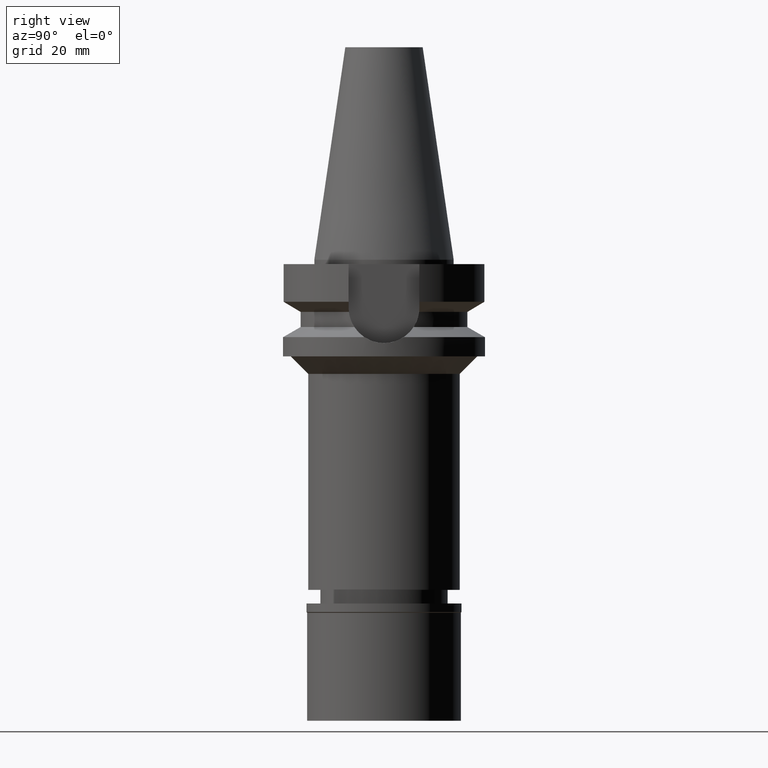
[diagram: clean part render]
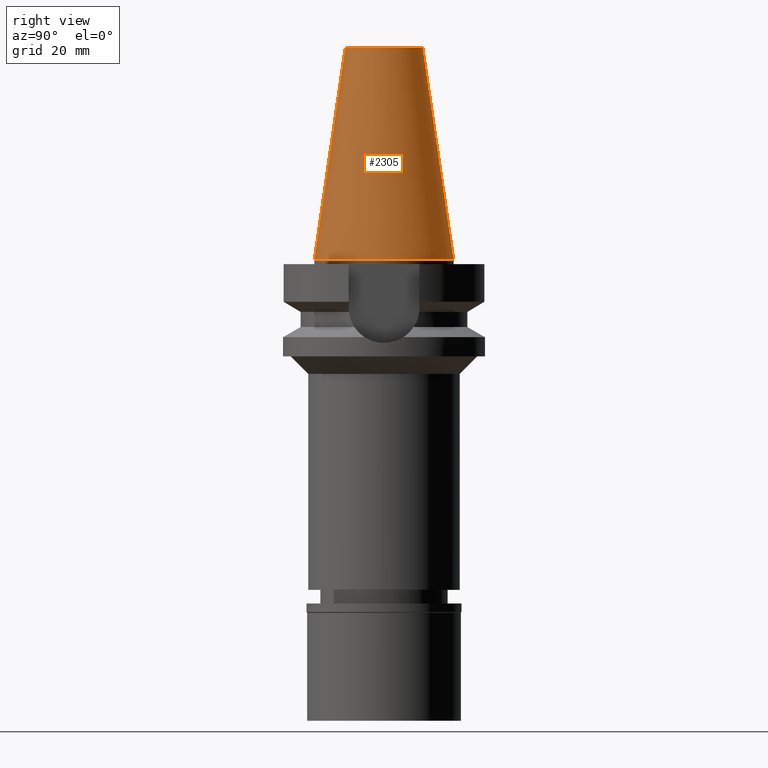
[diagram: same view with one face highlighted and labeled with its STEP entity id]
A machine part, right view. The second image highlights one B-rep face of the part: STEP entity #2305.
In plain terms, the highlighted conical surface has half-angle 8.297 deg.
Its self-contained STEP definition (entity closure, byte-faithful):
#13 = DIRECTION ( 'NONE',  ( 0.0000000000000000000, 0.0000000000000000000, -1.000000000000000000 ) ) ;
#48 = EDGE_LOOP ( 'NONE', ( #2839, #1650, #2020, #128 ) ) ;
#76 = AXIS2_PLACEMENT_3D ( 'NONE', #2043, #13, #1319 ) ;
#128 = ORIENTED_EDGE ( 'NONE', *, *, #2444, .F. ) ;
#129 = CARTESIAN_POINT ( 'NONE',  ( 0.0000000000000000000, -8.816791732783000768, 48.39999999999999858 ) ) ;
#223 = EDGE_CURVE ( 'NONE', #1179, #2456, #2357, .T. ) ;
#354 = CARTESIAN_POINT ( 'NONE',  ( 0.0000000000000000000, 1.521011324540999938E-14, 48.39999999999999858 ) ) ;
#396 = AXIS2_PLACEMENT_3D ( 'NONE', #946, #933, #2819 ) ;
#593 = CARTESIAN_POINT ( 'NONE',  ( 0.0000000000000000000, -15.87500000000000000, -1.776356839399999796E-13 ) ) ;
#711 = AXIS2_PLACEMENT_3D ( 'NONE', #354, #1295, #2223 ) ;
#815 = VECTOR ( 'NONE', #1903, 1000.000000000000114 ) ;
#820 = LINE ( 'NONE', #2436, #815 ) ;
#933 = DIRECTION ( 'NONE',  ( 0.0000000000000000000, 0.0000000000000000000, -1.000000000000000000 ) ) ;
#946 = CARTESIAN_POINT ( 'NONE',  ( 0.0000000000000000000, 1.521011324540999938E-14, 24.19999999999999929 ) ) ;
#1101 = EDGE_CURVE ( 'NONE', #1681, #2456, #2622, .T. ) ;
#1179 = VERTEX_POINT ( 'NONE', #2172 ) ;
#1295 = DIRECTION ( 'NONE',  ( 0.0000000000000000000, 0.0000000000000000000, -1.000000000000000000 ) ) ;
#1319 = DIRECTION ( 'NONE',  ( 0.0000000000000000000, 1.000000000000000000, 0.0000000000000000000 ) ) ;
#1447 = EDGE_CURVE ( 'NONE', #2318, #1681, #1901, .T. ) ;
#1638 = FACE_OUTER_BOUND ( 'NONE', #48, .T. ) ;
#1650 = ORIENTED_EDGE ( 'NONE', *, *, #1101, .T. ) ;
#1672 = CARTESIAN_POINT ( 'NONE',  ( 0.0000000000000000000, 8.816791732783000768, 48.39999999999999858 ) ) ;
#1681 = VERTEX_POINT ( 'NONE', #1889 ) ;
#1889 = CARTESIAN_POINT ( 'NONE',  ( 0.0000000000000000000, -8.816791732783000768, 48.39999999999999858 ) ) ;
#1901 = CIRCLE ( 'NONE', #711, 8.816791732783000768 ) ;
#1903 = DIRECTION ( 'NONE',  ( 0.0000000000000000000, 0.1443043893539925626, -0.9895333461855498891 ) ) ;
#2020 = ORIENTED_EDGE ( 'NONE', *, *, #223, .F. ) ;
#2043 = CARTESIAN_POINT ( 'NONE',  ( 0.0000000000000000000, 1.521011324540999938E-14, -3.694822225953000089E-13 ) ) ;
#2172 = CARTESIAN_POINT ( 'NONE',  ( 0.0000000000000000000, 15.87500000000000000, -1.776356839399999796E-13 ) ) ;
#2223 = DIRECTION ( 'NONE',  ( 0.0000000000000000000, 1.000000000000000000, 0.0000000000000000000 ) ) ;
#2305 = ADVANCED_FACE ( 'NONE', ( #1638 ), #2481, .T. ) ;
#2318 = VERTEX_POINT ( 'NONE', #1672 ) ;
#2357 = CIRCLE ( 'NONE', #76, 15.87500000000000000 ) ;
#2436 = CARTESIAN_POINT ( 'NONE',  ( 0.0000000000000000000, 8.816791732783000768, 48.39999999999999858 ) ) ;
#2444 = EDGE_CURVE ( 'NONE', #2318, #1179, #820, .T. ) ;
#2456 = VERTEX_POINT ( 'NONE', #593 ) ;
#2457 = DIRECTION ( 'NONE',  ( 0.0000000000000000000, -0.1443043893539925626, -0.9895333461855498891 ) ) ;
#2481 = CONICAL_SURFACE ( 'NONE', #396, 12.34589586639000025, 0.1448099680379422438 ) ;
#2622 = LINE ( 'NONE', #129, #2647 ) ;
#2647 = VECTOR ( 'NONE', #2457, 1000.000000000000114 ) ;
#2819 = DIRECTION ( 'NONE',  ( 0.0000000000000000000, -1.000000000000000000, 0.0000000000000000000 ) ) ;
#2839 = ORIENTED_EDGE ( 'NONE', *, *, #1447, .T. ) ;